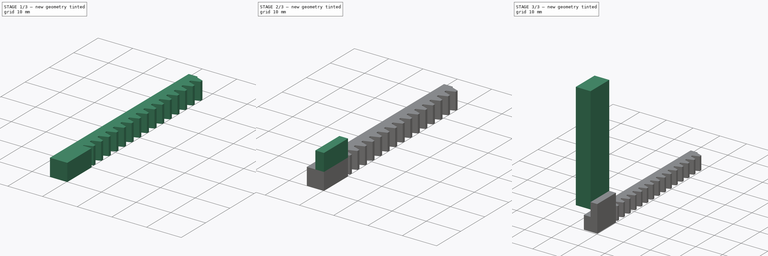
[diagram: build sequence overview — one tinted view per stage of 3, left to right]
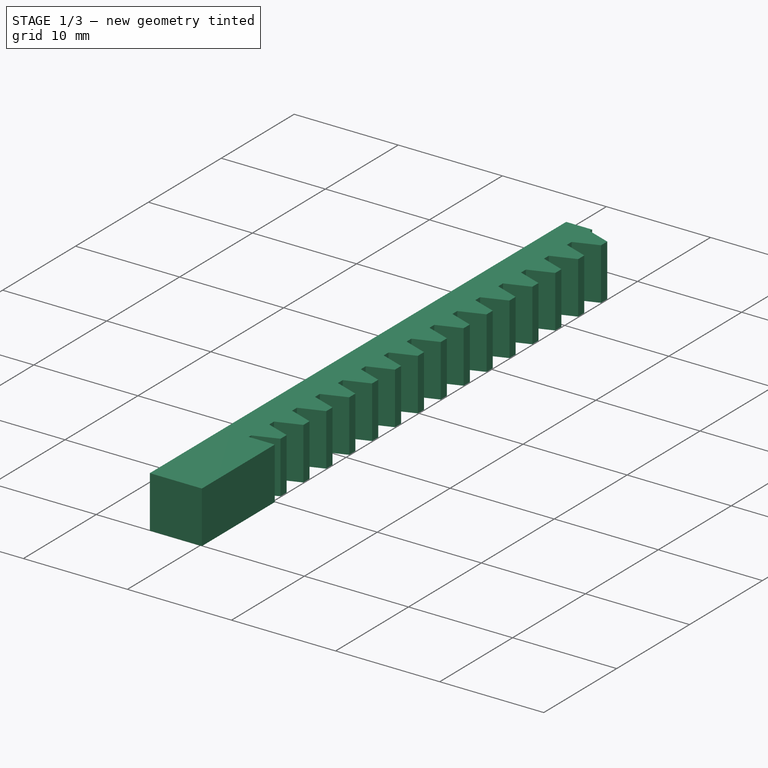
[diagram: stage 1 of 3 — iso view after this stage's code; geometry added in this stage tinted green]
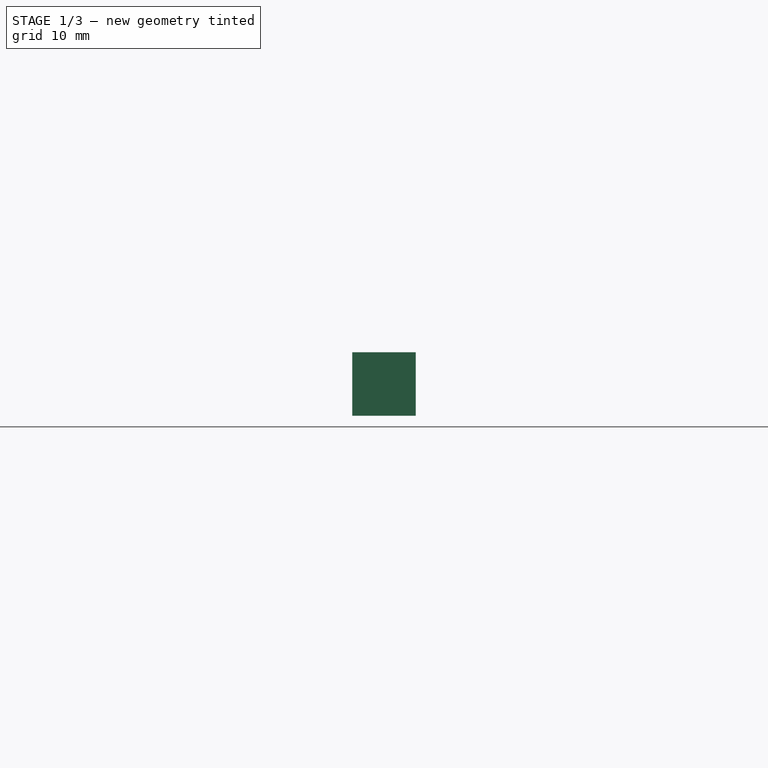
[diagram: stage 1 of 3 — front view after this stage's code; geometry added in this stage tinted green]
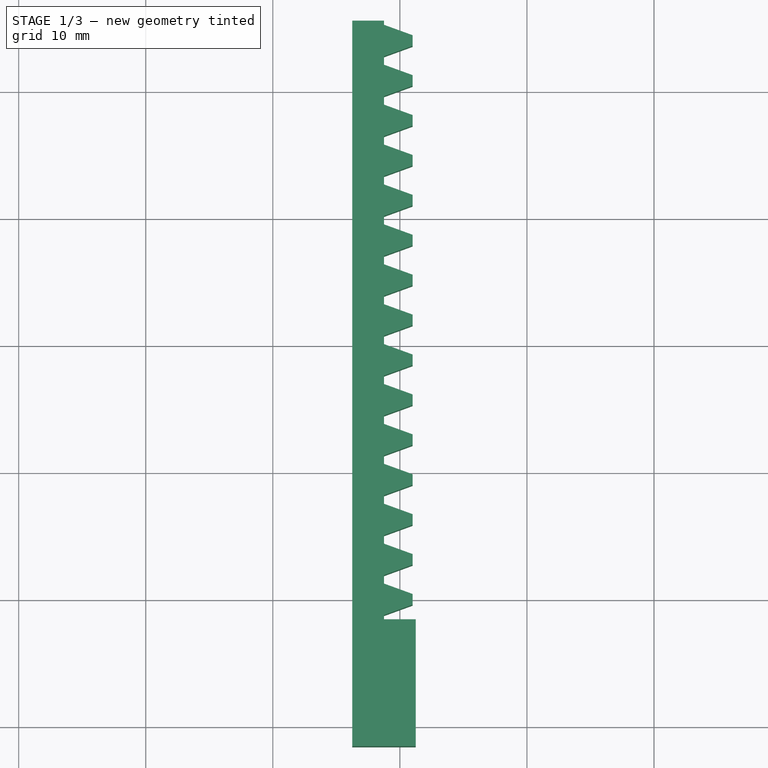
[diagram: stage 1 of 3 — top view after this stage's code; geometry added in this stage tinted green]
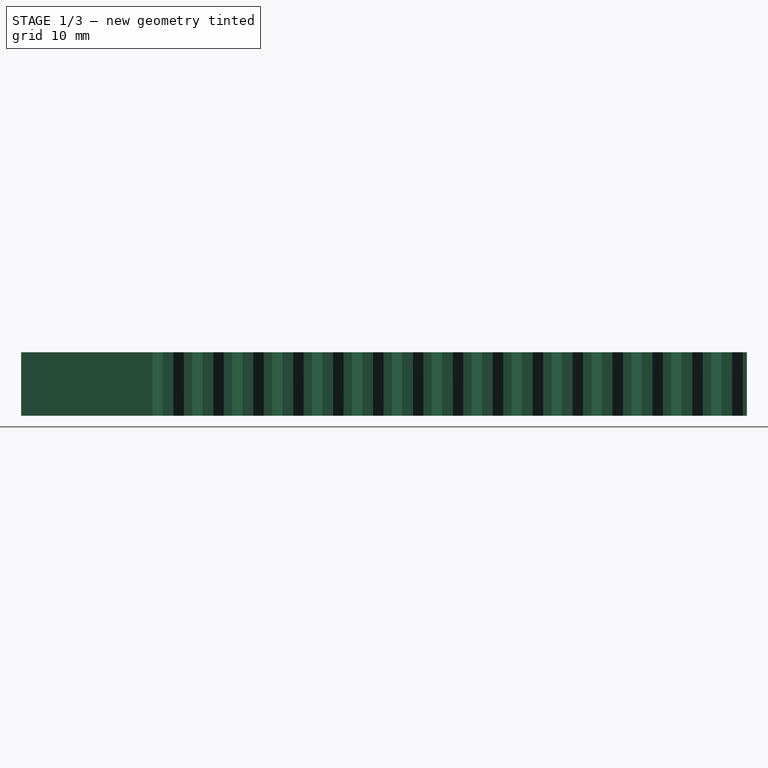
[diagram: stage 1 of 3 — right view after this stage's code; geometry added in this stage tinted green]
FCSTD DOCUMENT  (FreeCAD 0.20R29410 (Git))
Label: linearGear
License: All rights reserved
LicenseURL: http://en.wikipedia.org/wiki/All_rights_reserved
objects: Sketcher::SketchObject×4, PartDesign::Pad×4, PartDesign::FeaturePython×1, PartDesign::Body×1, App::Part×1
note: 14 computed .brp shape members not serialized (recipe doc carries the construction recipe); baked Part::Feature solids carry a one-line shape summary decoded from their .brp

FEATURE [PartDesign::FeaturePython] InvoluteRack  # WARN: FeaturePython — macro-defined, semantics opaque (R4)
  AttacherType = Attacher::AttachEngine3D
  add_endings = true
  beta = 0
  clearance = 0.25
  double_helix = false
  head = 0
  head_fillet = 0
  height = 5
  module = 1
  pressure_angle = 20
  properties_from_tool = false
  root_fillet = 0
  simplified = false
  teeth = 15
  thickness = 2.5
  transverse_pitch = 3.14159
  version = 0.0.4
FEATURE [Sketcher::SketchObject] Sketch
  FullyConstrained = true
  MapMode = 5
  Placement = pos=(0,-1.5708,0) rot=(1,0,0;1.5708rad)
  Support = -> [InvoluteRack]
  sketch-geometry (4):
    g0: LineSegment StartX=-3.75 StartY=5 StartZ=0 EndX=1.25 EndY=5 EndZ=0
    g1: LineSegment StartX=1.25 StartY=5 StartZ=0 EndX=1.25 EndY=0 EndZ=0
    g2: LineSegment StartX=1.25 StartY=0 StartZ=0 EndX=-3.75 EndY=0 EndZ=0
    g3: LineSegment StartX=-3.75 StartY=0 StartZ=0 EndX=-3.75 EndY=5 EndZ=0
  constraints (12):
    c: Coincident(g0,g1)
    c: Coincident(g1,g2)
    c: Coincident(g2,g3)
    c: Coincident(g3,g0)
    c: Horizontal(g0)
    c: Horizontal(g2)
    c: Vertical(g1)
    c: Vertical(g3)
    c: DistanceY(g-1,g0) = 5
    c: DistanceY(g2,g-1) = 0
    c: DistanceX(g2,g-1) = 3.75
    c: DistanceX(g-1,g0) = 1.25
FEATURE [PartDesign::Pad] Pad
  BaseFeature = -> InvoluteRack
  Direction = (0,-1,2e-16)
  Length = 10
  Length2 = 10
  Profile = -> Sketch
  ReferenceAxis = -> Sketch [N_Axis]
  Type = 0
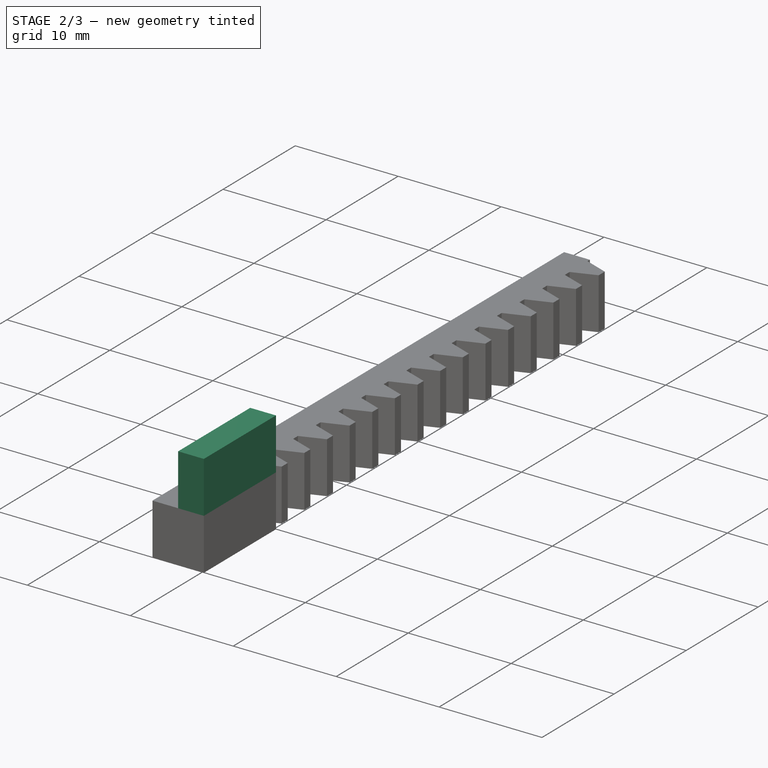
[diagram: stage 2 of 3 — iso view after this stage's code; geometry added in this stage tinted green]
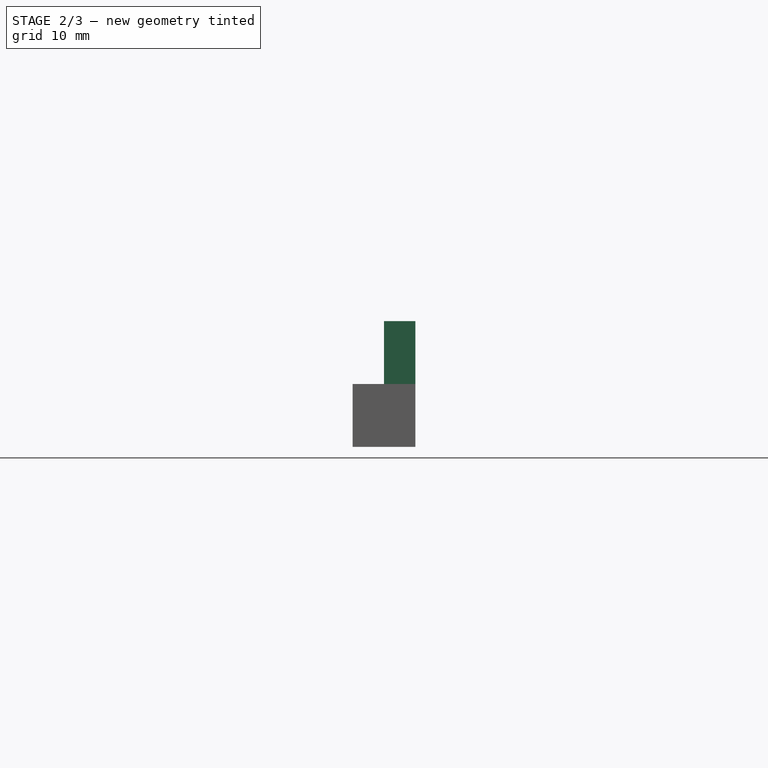
[diagram: stage 2 of 3 — front view after this stage's code; geometry added in this stage tinted green]
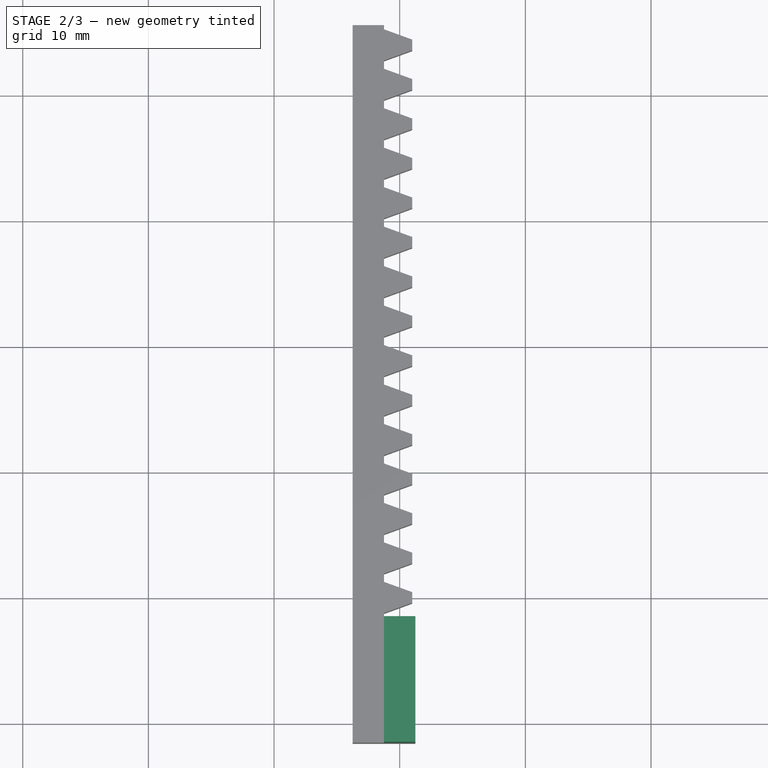
[diagram: stage 2 of 3 — top view after this stage's code; geometry added in this stage tinted green]
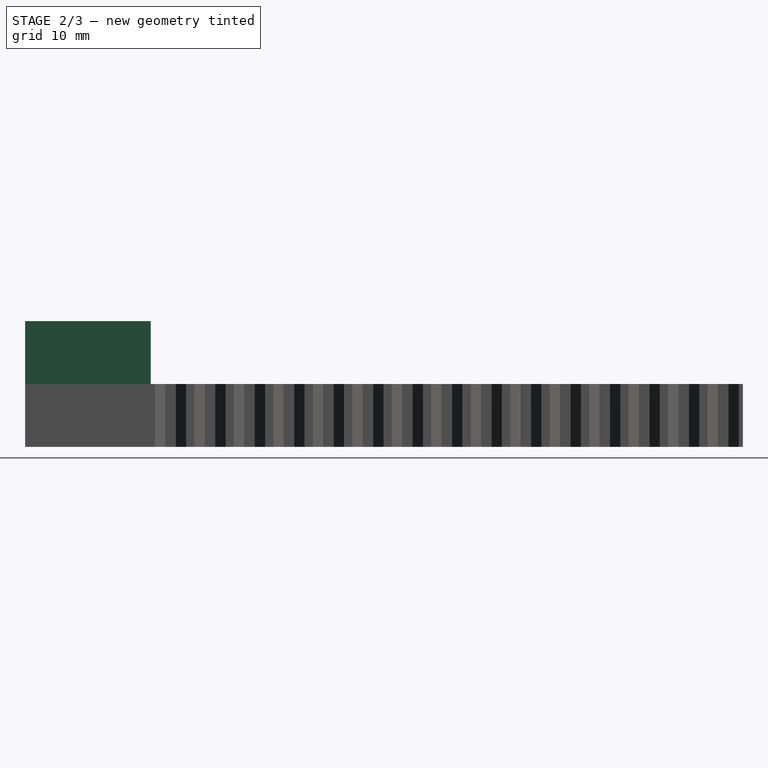
[diagram: stage 2 of 3 — right view after this stage's code; geometry added in this stage tinted green]
FEATURE [Sketcher::SketchObject] Sketch001
  FullyConstrained = true
  MapMode = 5
  Placement = pos=(0,1.1e-15,5) rot=(0,0,1;0rad)
  Support = -> [Pad]
  sketch-geometry (4):
    g0: LineSegment StartX=-1.25 StartY=-1.575 StartZ=0 EndX=1.25 EndY=-1.575 EndZ=0
    g1: LineSegment StartX=1.25 StartY=-1.575 StartZ=0 EndX=1.25 EndY=-11.575 EndZ=0
    g2: LineSegment StartX=1.25 StartY=-11.575 StartZ=0 EndX=-1.25 EndY=-11.575 EndZ=0
    g3: LineSegment StartX=-1.25 StartY=-11.575 StartZ=0 EndX=-1.25 EndY=-1.575 EndZ=0
  constraints (12):
    c: Coincident(g0,g1)
    c: Coincident(g1,g2)
    c: Coincident(g2,g3)
    c: Coincident(g3,g0)
    c: Horizontal(g0)
    c: Horizontal(g2)
    c: Vertical(g1)
    c: Vertical(g3)
    c: DistanceX(g0,g-1) = 1.25
    c: DistanceX(g-1,g0) = 1.25
    c: DistanceY(g0,g-1) = 1.575
    c: DistanceY(g1,g0) = 10
FEATURE [PartDesign::Pad] Pad001
  BaseFeature = -> Pad
  Direction = (0,2e-16,1)
  Length = 5
  Length2 = 10
  Profile = -> Sketch001
  ReferenceAxis = -> Sketch001 [N_Axis]
  Type = 0
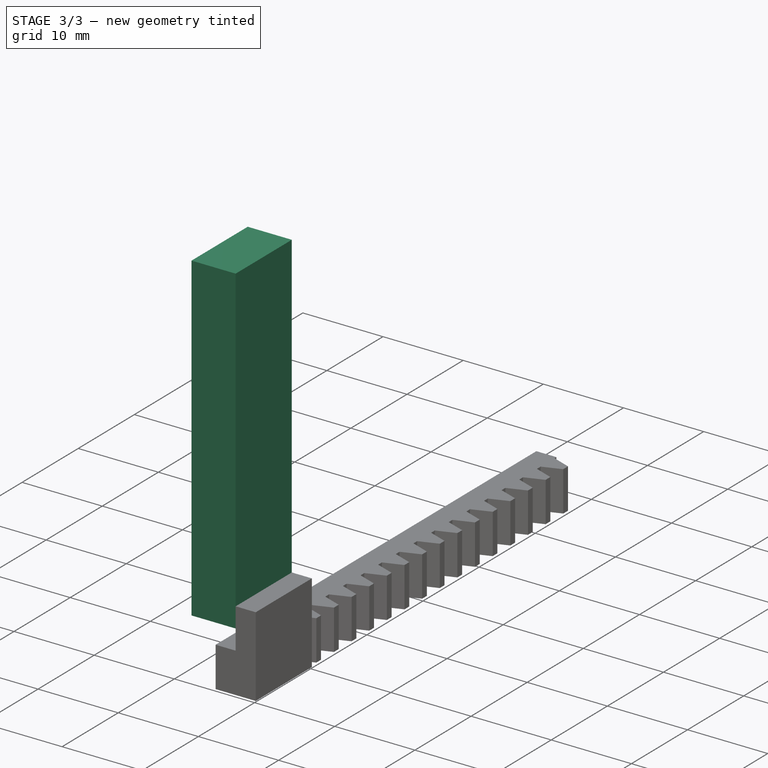
[diagram: stage 3 of 3 — iso view after this stage's code; geometry added in this stage tinted green]
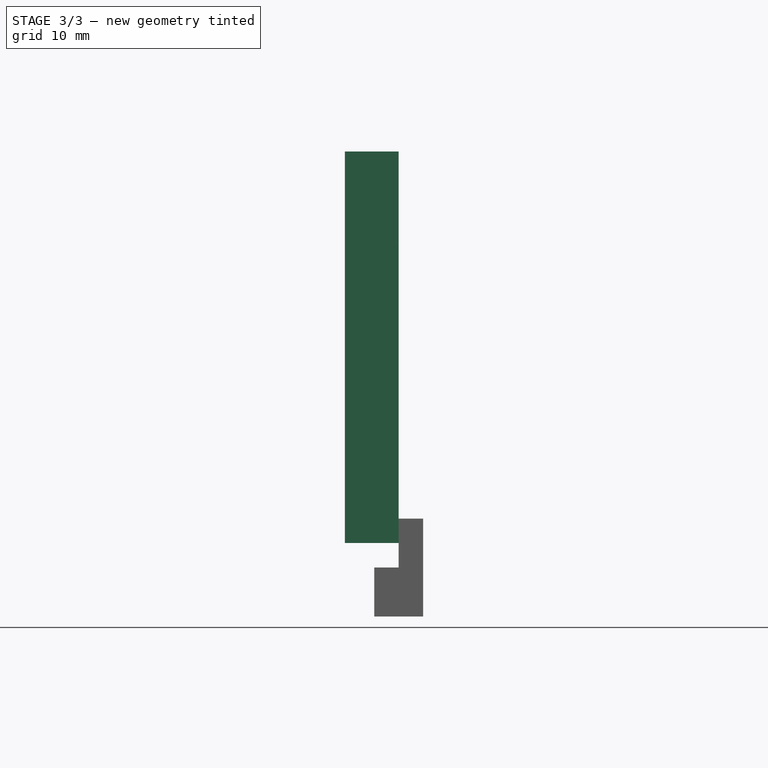
[diagram: stage 3 of 3 — front view after this stage's code; geometry added in this stage tinted green]
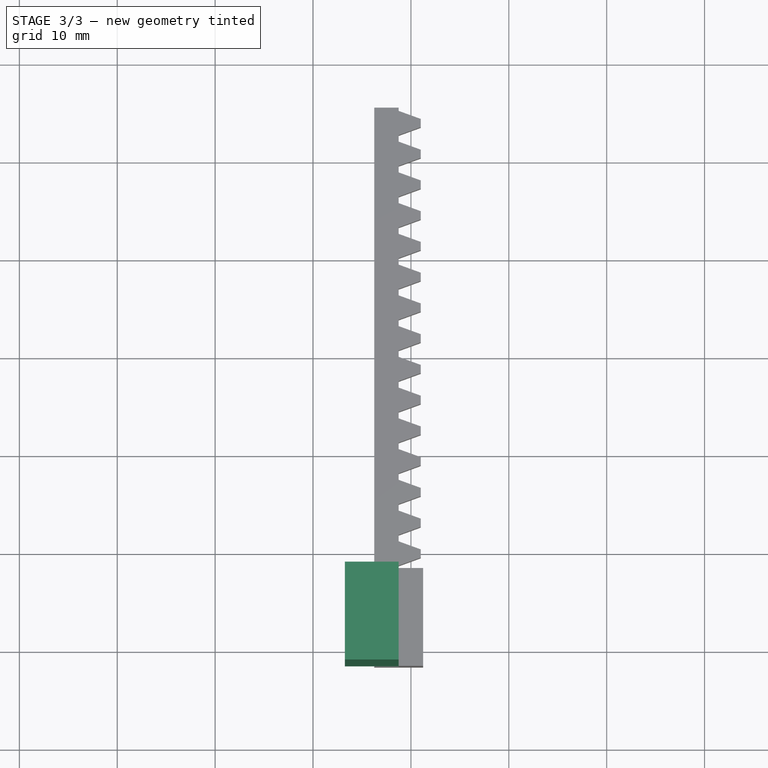
[diagram: stage 3 of 3 — top view after this stage's code; geometry added in this stage tinted green]
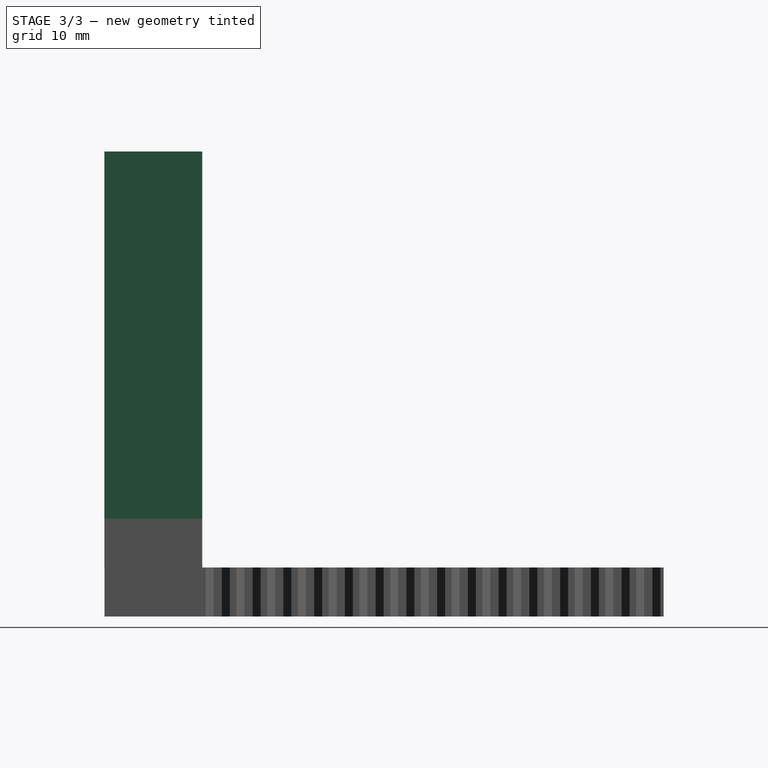
[diagram: stage 3 of 3 — right view after this stage's code; geometry added in this stage tinted green]
FEATURE [Sketcher::SketchObject] Sketch002
  FullyConstrained = true
  MapMode = 5
  Placement = pos=(-1.25,0,0) rot=(0.57735,-0.57735,-0.57735;2.0944rad)
  Support = -> [Pad001]
  sketch-geometry (4):
    g0: LineSegment StartX=1.575 StartY=10 StartZ=0 EndX=11.575 EndY=10 EndZ=0
    g1: LineSegment StartX=11.575 StartY=10 StartZ=0 EndX=11.575 EndY=7.5 EndZ=0
    g2: LineSegment StartX=11.575 StartY=7.5 StartZ=0 EndX=1.575 EndY=7.5 EndZ=0
    g3: LineSegment StartX=1.575 StartY=7.5 StartZ=0 EndX=1.575 EndY=10 EndZ=0
  constraints (12):
    c: Coincident(g0,g1)
    c: Coincident(g1,g2)
    c: Coincident(g2,g3)
    c: Coincident(g3,g0)
    c: Horizontal(g0)
    c: Horizontal(g2)
    c: Vertical(g1)
    c: Vertical(g3)
    c: DistanceX(g-1,g2) = 1.575
    c: DistanceY(g-1,g2) = 7.5
    c: DistanceY(g-1,g0) = 10
    c: DistanceX(g2,g1) = 10
FEATURE [PartDesign::Pad] Pad002
  BaseFeature = -> Pad001
  Direction = (-1,0,0)
  Length = 5.5
  Length2 = 10
  Profile = -> Sketch002
  ReferenceAxis = -> Sketch002 [N_Axis]
  Type = 0
FEATURE [Sketcher::SketchObject] Sketch003
  FullyConstrained = true
  MapMode = 5
  Placement = pos=(0,0,10) rot=(0,0,1;0rad)
  Support = -> [Pad002]
  sketch-geometry (4):
    g0: LineSegment StartX=-6.75 StartY=-1.575 StartZ=0 EndX=-1.25 EndY=-1.575 EndZ=0
    g1: LineSegment StartX=-1.25 StartY=-1.575 StartZ=0 EndX=-1.25 EndY=-11.575 EndZ=0
    g2: LineSegment StartX=-1.25 StartY=-11.575 StartZ=0 EndX=-6.75 EndY=-11.575 EndZ=0
    g3: LineSegment StartX=-6.75 StartY=-11.575 StartZ=0 EndX=-6.75 EndY=-1.575 EndZ=0
  constraints (12):
    c: Coincident(g0,g1)
    c: Coincident(g1,g2)
    c: Coincident(g2,g3)
    c: Coincident(g3,g0)
    c: Horizontal(g0)
    c: Horizontal(g2)
    c: Vertical(g1)
    c: Vertical(g3)
    c: DistanceX(g0,g-1) = 1.25
    c: DistanceY(g0,g-1) = 1.575
    c: DistanceY(g1,g0) = 10
    c: DistanceX(g2,g1) = 5.5
FEATURE [PartDesign::Pad] Pad003
  BaseFeature = -> Pad002
  Direction = (0,0,1)
  Length = 37.5
  Length2 = 10
  Profile = -> Sketch003
  ReferenceAxis = -> Sketch003 [N_Axis]
  Type = 0
FEATURE [PartDesign::Body] Body
  Group = -> [InvoluteRack,Sketch,Pad,Sketch001,Pad001,Sketch002,Pad002,Sketch003,Pad003]
  Origin = -> Origin001
  Tip = -> Pad003
FEATURE [App::Part] Part
  Group = -> [Body]
  Origin = -> Origin
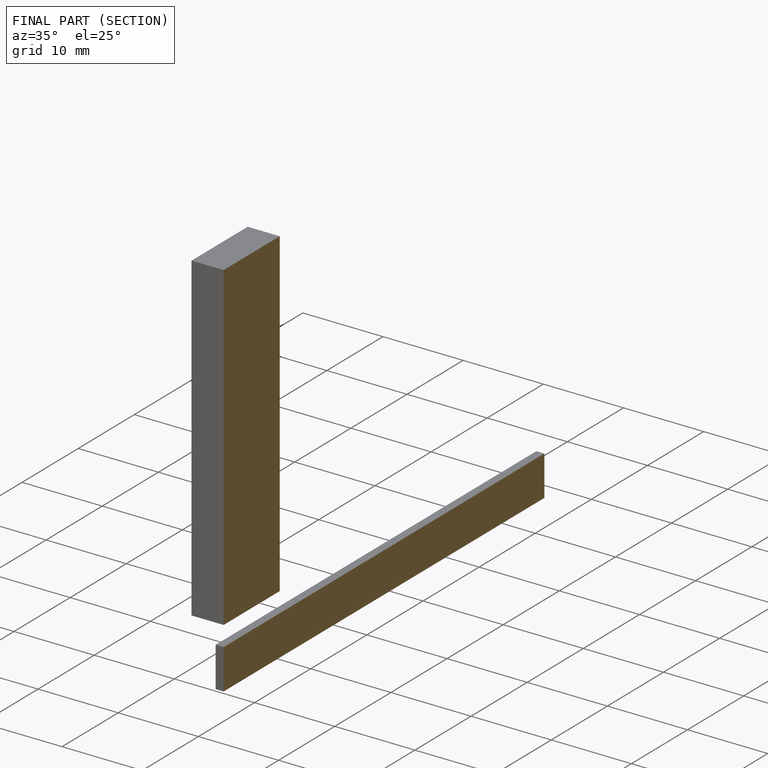
[diagram: finished part — half-section view (interior)]
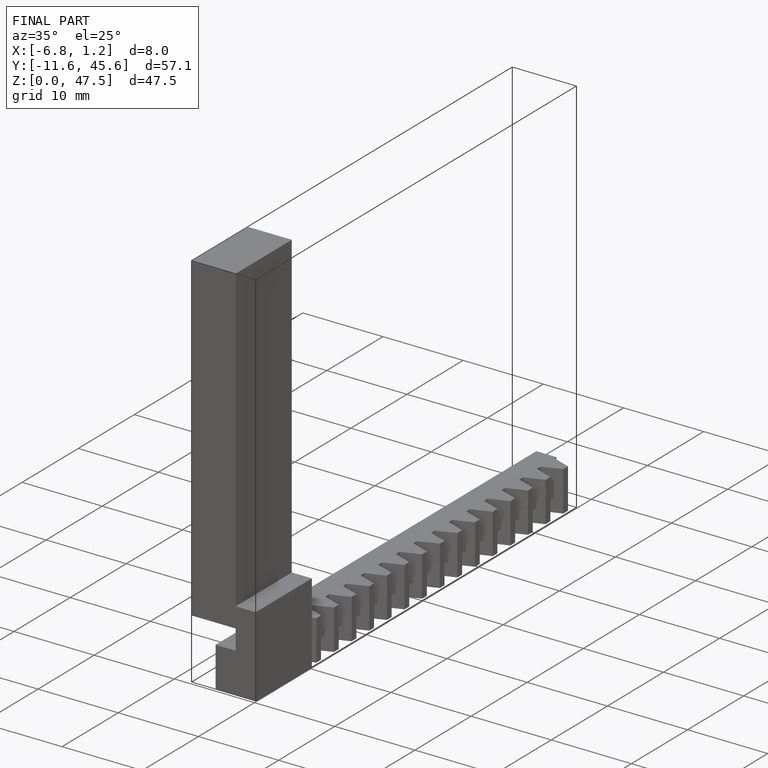
[diagram: finished part — iso view with bounding-box wireframe]
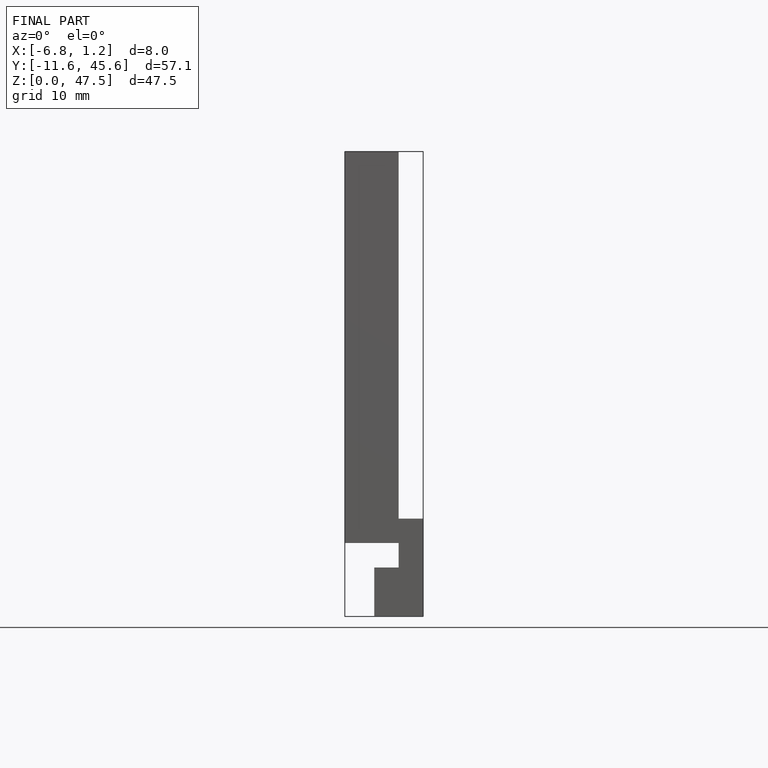
[diagram: finished part — front view with bounding-box wireframe]
